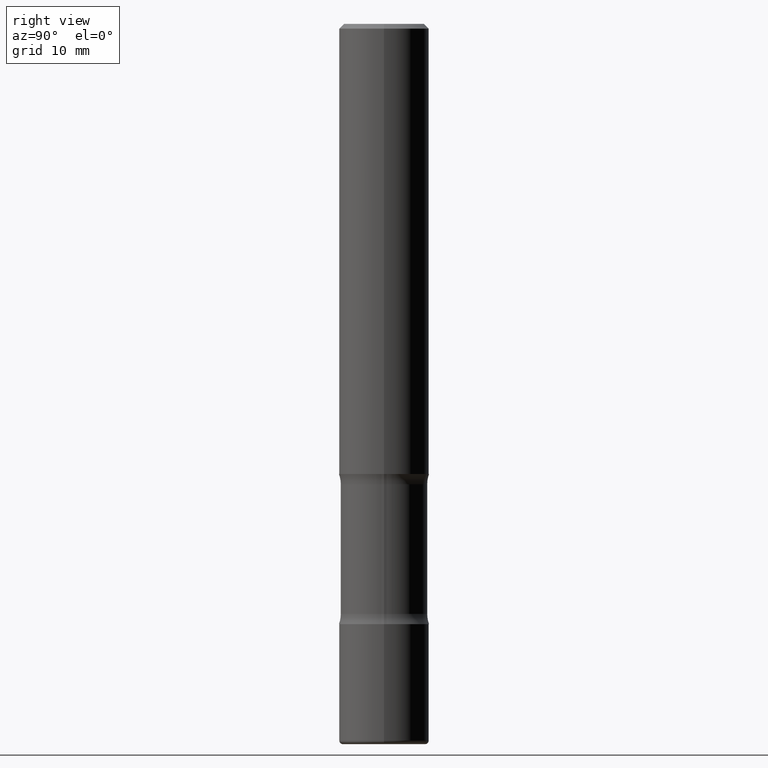
[diagram: clean part render]
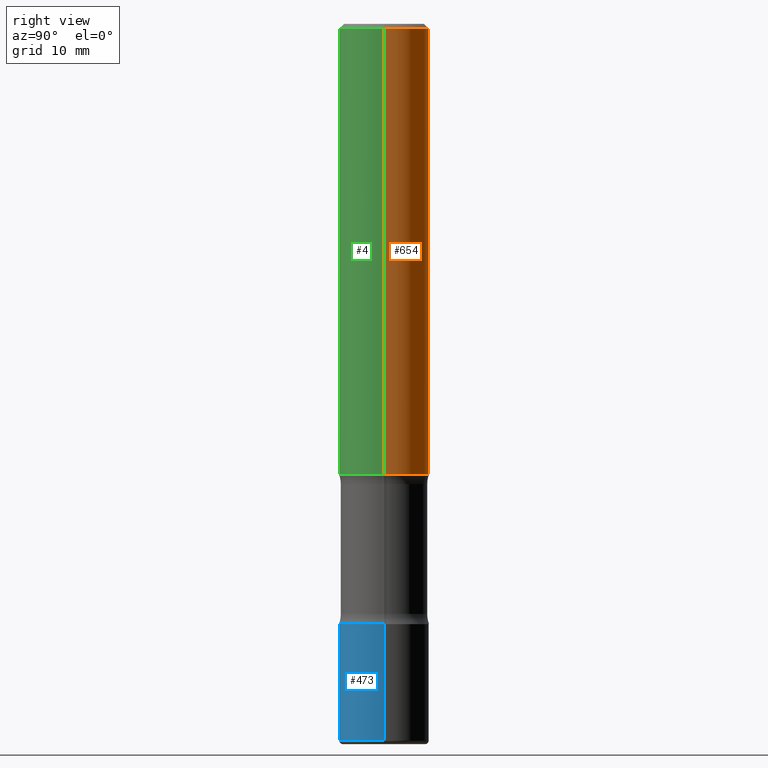
[diagram: same view with three faces highlighted in distinct colors, each labeled with its STEP entity id]
A machine part, right view with three faces highlighted in distinct colors.
Their STEP definitions:

[orange] entity #654 — the highlighted cylindrical surface (partial cylindrical patch) has radius 4.7625 mm, axis along (-0, 0, 1).
#6 = VERTEX_POINT ( 'NONE', #77 ) ;
#10 = AXIS2_PLACEMENT_3D ( 'NONE', #354, #736, #227 ) ;
#33 = ORIENTED_EDGE ( 'NONE', *, *, #168, .F. ) ;
#49 = LINE ( 'NONE', #162, #436 ) ;
#65 = CIRCLE ( 'NONE', #580, 0.1874999999999997780 ) ;
#77 = CARTESIAN_POINT ( 'NONE',  ( 0.1874999999999997780, -1.356173001359023691E-15, -0.02000000000000003858 ) ) ;
#117 = ORIENTED_EDGE ( 'NONE', *, *, #686, .T. ) ;
#162 = CARTESIAN_POINT ( 'NONE',  ( -0.1874999999999999167, 1.332267629550187257E-15, -9.223003294227943787E-30 ) ) ;
#167 = AXIS2_PLACEMENT_3D ( 'NONE', #703, #724, #582 ) ;
#168 = EDGE_CURVE ( 'NONE', #6, #472, #65, .T. ) ;
#227 = DIRECTION ( 'NONE',  ( 1.000000000000000000, -6.982962677686265922E-15, 4.876176775795935793E-29 ) ) ;
#304 = DIRECTION ( 'NONE',  ( -2.445468806185136877E-29, 3.491481338843145188E-15, 1.000000000000000000 ) ) ;
#316 = CIRCLE ( 'NONE', #167, 0.1875000000000000278 ) ;
#354 = CARTESIAN_POINT ( 'NONE',  ( 0.000000000000000000, 0.000000000000000000, 0.000000000000000000 ) ) ;
#366 = DIRECTION ( 'NONE',  ( -2.445468806185136877E-29, 3.491481338843145188E-15, 1.000000000000000000 ) ) ;
#414 = EDGE_LOOP ( 'NONE', ( #706, #117, #33, #500 ) ) ;
#424 = CYLINDRICAL_SURFACE ( 'NONE', #10, 0.1874999999999999167 ) ;
#435 = VERTEX_POINT ( 'NONE', #757 ) ;
#436 = VECTOR ( 'NONE', #304, 39.37007874015748143 ) ;
#437 = DIRECTION ( 'NONE',  ( 1.000000000000000000, -6.982962677686265133E-15, 0.000000000000000000 ) ) ;
#472 = VERTEX_POINT ( 'NONE', #503 ) ;
#481 = DIRECTION ( 'NONE',  ( -2.445468806185136597E-29, 3.491481338843145583E-15, 1.000000000000000000 ) ) ;
#500 = ORIENTED_EDGE ( 'NONE', *, *, #664, .F. ) ;
#503 = CARTESIAN_POINT ( 'NONE',  ( -0.1874999999999997780, 1.239475875289310330E-15, -0.02000000000000003858 ) ) ;
#539 = CARTESIAN_POINT ( 'NONE',  ( 0.1874999999999999167, -1.309305502066174219E-15, 9.142831454617375408E-30 ) ) ;
#580 = AXIS2_PLACEMENT_3D ( 'NONE', #747, #481, #437 ) ;
#582 = DIRECTION ( 'NONE',  ( 1.000000000000000000, -6.982962677686266711E-15, 0.000000000000000000 ) ) ;
#615 = VERTEX_POINT ( 'NONE', #646 ) ;
#636 = VECTOR ( 'NONE', #366, 39.37007874015748143 ) ;
#646 = CARTESIAN_POINT ( 'NONE',  ( -0.1874999999999999722, -1.975910939003691182E-15, -1.875000000000000000 ) ) ;
#654 = ADVANCED_FACE ( 'NONE', ( #786 ), #424, .T. ) ;
#663 = LINE ( 'NONE', #539, #636 ) ;
#664 = EDGE_CURVE ( 'NONE', #435, #6, #663, .T. ) ;
#686 = EDGE_CURVE ( 'NONE', #615, #472, #49, .T. ) ;
#703 = CARTESIAN_POINT ( 'NONE',  ( 4.585254011597131119E-29, -6.546527510330898707E-15, -1.875000000000000000 ) ) ;
#706 = ORIENTED_EDGE ( 'NONE', *, *, #797, .T. ) ;
#724 = DIRECTION ( 'NONE',  ( -2.445468806185136597E-29, 3.491481338843145583E-15, 1.000000000000000000 ) ) ;
#736 = DIRECTION ( 'NONE',  ( -2.445468806185136597E-29, 3.491481338843145583E-15, 1.000000000000000000 ) ) ;
#747 = CARTESIAN_POINT ( 'NONE',  ( 4.890937612370282792E-31, -6.982962677686303935E-17, -0.02000000000000003858 ) ) ;
#757 = CARTESIAN_POINT ( 'NONE',  ( 0.1875000000000000278, -7.855833012397073715E-15, -1.875000000000000000 ) ) ;
#786 = FACE_OUTER_BOUND ( 'NONE', #414, .T. ) ;
#797 = EDGE_CURVE ( 'NONE', #435, #615, #316, .T. ) ;

[blue] entity #473 — the highlighted cylindrical surface (partial cylindrical patch) has radius 4.7625 mm, axis along (-0, 0, 1).
#19 = CARTESIAN_POINT ( 'NONE',  ( 0.1875000000000000833, -1.173137729851296152E-14, -2.984999999999999876 ) ) ;
#22 = AXIS2_PLACEMENT_3D ( 'NONE', #771, #460, #710 ) ;
#29 = DIRECTION ( 'NONE',  ( -2.445468806185136597E-29, 3.491481338843145583E-15, 1.000000000000000000 ) ) ;
#51 = ORIENTED_EDGE ( 'NONE', *, *, #605, .T. ) ;
#79 = CARTESIAN_POINT ( 'NONE',  ( 6.113672015462840371E-29, -8.728703347107863365E-15, -2.499999999999999556 ) ) ;
#138 = AXIS2_PLACEMENT_3D ( 'NONE', #721, #576, #591 ) ;
#169 = LINE ( 'NONE', #488, #571 ) ;
#267 = DIRECTION ( 'NONE',  ( 1.000000000000000000, -6.982962677686265922E-15, 0.000000000000000000 ) ) ;
#275 = EDGE_CURVE ( 'NONE', #789, #390, #310, .T. ) ;
#310 = LINE ( 'NONE', #782, #391 ) ;
#336 = CARTESIAN_POINT ( 'NONE',  ( -0.1875000000000000833, -9.089804166896600242E-15, -2.984999999999999876 ) ) ;
#376 = CYLINDRICAL_SURFACE ( 'NONE', #138, 0.1875000000000000555 ) ;
#386 = ORIENTED_EDGE ( 'NONE', *, *, #743, .T. ) ;
#390 = VERTEX_POINT ( 'NONE', #693 ) ;
#391 = VECTOR ( 'NONE', #554, 39.37007874015748143 ) ;
#451 = ORIENTED_EDGE ( 'NONE', *, *, #499, .F. ) ;
#460 = DIRECTION ( 'NONE',  ( -2.445468806185136597E-29, 3.491481338843145583E-15, 1.000000000000000000 ) ) ;
#473 = ADVANCED_FACE ( 'NONE', ( #633 ), #376, .T. ) ;
#474 = CARTESIAN_POINT ( 'NONE',  ( 0.1875000000000000555, -1.003800884917403837E-14, -2.499999999999999556 ) ) ;
#488 = CARTESIAN_POINT ( 'NONE',  ( 0.1875000000000000555, -1.309305502066175205E-15, 9.142831454617382414E-30 ) ) ;
#499 = EDGE_CURVE ( 'NONE', #390, #670, #546, .T. ) ;
#517 = CIRCLE ( 'NONE', #22, 0.1875000000000000278 ) ;
#532 = AXIS2_PLACEMENT_3D ( 'NONE', #79, #29, #267 ) ;
#546 = CIRCLE ( 'NONE', #532, 0.1875000000000000555 ) ;
#554 = DIRECTION ( 'NONE',  ( -2.445468806185136877E-29, 3.491481338843145188E-15, 1.000000000000000000 ) ) ;
#569 = EDGE_LOOP ( 'NONE', ( #800, #51, #386, #451 ) ) ;
#571 = VECTOR ( 'NONE', #740, 39.37007874015748143 ) ;
#574 = VERTEX_POINT ( 'NONE', #19 ) ;
#576 = DIRECTION ( 'NONE',  ( -2.445468806185136597E-29, 3.491481338843145583E-15, 1.000000000000000000 ) ) ;
#591 = DIRECTION ( 'NONE',  ( 1.000000000000000000, -6.982962677686265922E-15, 4.876176775795935793E-29 ) ) ;
#605 = EDGE_CURVE ( 'NONE', #789, #574, #517, .T. ) ;
#633 = FACE_OUTER_BOUND ( 'NONE', #569, .T. ) ;
#670 = VERTEX_POINT ( 'NONE', #474 ) ;
#693 = CARTESIAN_POINT ( 'NONE',  ( -0.1875000000000000555, -8.243119942227137091E-15, -2.499999999999999556 ) ) ;
#710 = DIRECTION ( 'NONE',  ( 1.000000000000000000, -6.982962677686261189E-15, 0.000000000000000000 ) ) ;
#721 = CARTESIAN_POINT ( 'NONE',  ( 0.000000000000000000, 0.000000000000000000, 0.000000000000000000 ) ) ;
#740 = DIRECTION ( 'NONE',  ( -2.445468806185136877E-29, 3.491481338843145188E-15, 1.000000000000000000 ) ) ;
#743 = EDGE_CURVE ( 'NONE', #574, #670, #169, .T. ) ;
#771 = CARTESIAN_POINT ( 'NONE',  ( 7.299724386462632472E-29, -1.042207179644678967E-14, -2.984999999999999876 ) ) ;
#782 = CARTESIAN_POINT ( 'NONE',  ( -0.1875000000000000555, 1.332267629550188243E-15, -9.223003294227950793E-30 ) ) ;
#789 = VERTEX_POINT ( 'NONE', #336 ) ;
#800 = ORIENTED_EDGE ( 'NONE', *, *, #275, .F. ) ;

[green] entity #4 — the highlighted cylindrical surface (partial cylindrical patch) has radius 4.7625 mm, axis along (-0, 0, 1).
#4 = ADVANCED_FACE ( 'NONE', ( #20 ), #152, .T. ) ;
#6 = VERTEX_POINT ( 'NONE', #77 ) ;
#20 = FACE_OUTER_BOUND ( 'NONE', #124, .T. ) ;
#49 = LINE ( 'NONE', #162, #436 ) ;
#69 = AXIS2_PLACEMENT_3D ( 'NONE', #105, #419, #796 ) ;
#77 = CARTESIAN_POINT ( 'NONE',  ( 0.1874999999999997780, -1.356173001359023691E-15, -0.02000000000000003858 ) ) ;
#105 = CARTESIAN_POINT ( 'NONE',  ( 4.890937612370282792E-31, -6.982962677686303935E-17, -0.02000000000000003858 ) ) ;
#124 = EDGE_LOOP ( 'NONE', ( #645, #184, #342, #444 ) ) ;
#152 = CYLINDRICAL_SURFACE ( 'NONE', #538, 0.1874999999999999167 ) ;
#162 = CARTESIAN_POINT ( 'NONE',  ( -0.1874999999999999167, 1.332267629550187257E-15, -9.223003294227943787E-30 ) ) ;
#184 = ORIENTED_EDGE ( 'NONE', *, *, #510, .T. ) ;
#238 = AXIS2_PLACEMENT_3D ( 'NONE', #412, #533, #512 ) ;
#304 = DIRECTION ( 'NONE',  ( -2.445468806185136877E-29, 3.491481338843145188E-15, 1.000000000000000000 ) ) ;
#342 = ORIENTED_EDGE ( 'NONE', *, *, #664, .T. ) ;
#366 = DIRECTION ( 'NONE',  ( -2.445468806185136877E-29, 3.491481338843145188E-15, 1.000000000000000000 ) ) ;
#412 = CARTESIAN_POINT ( 'NONE',  ( 4.585254011597131119E-29, -6.546527510330898707E-15, -1.875000000000000000 ) ) ;
#419 = DIRECTION ( 'NONE',  ( -2.445468806185136597E-29, 3.491481338843145583E-15, 1.000000000000000000 ) ) ;
#435 = VERTEX_POINT ( 'NONE', #757 ) ;
#436 = VECTOR ( 'NONE', #304, 39.37007874015748143 ) ;
#444 = ORIENTED_EDGE ( 'NONE', *, *, #704, .F. ) ;
#457 = DIRECTION ( 'NONE',  ( -2.445468806185136597E-29, 3.491481338843145583E-15, 1.000000000000000000 ) ) ;
#472 = VERTEX_POINT ( 'NONE', #503 ) ;
#495 = CIRCLE ( 'NONE', #238, 0.1875000000000000278 ) ;
#503 = CARTESIAN_POINT ( 'NONE',  ( -0.1874999999999997780, 1.239475875289310330E-15, -0.02000000000000003858 ) ) ;
#510 = EDGE_CURVE ( 'NONE', #615, #435, #495, .T. ) ;
#512 = DIRECTION ( 'NONE',  ( 1.000000000000000000, -6.982962677686266711E-15, 0.000000000000000000 ) ) ;
#533 = DIRECTION ( 'NONE',  ( -2.445468806185136597E-29, 3.491481338843145583E-15, 1.000000000000000000 ) ) ;
#538 = AXIS2_PLACEMENT_3D ( 'NONE', #592, #457, #726 ) ;
#539 = CARTESIAN_POINT ( 'NONE',  ( 0.1874999999999999167, -1.309305502066174219E-15, 9.142831454617375408E-30 ) ) ;
#558 = CIRCLE ( 'NONE', #69, 0.1874999999999997780 ) ;
#592 = CARTESIAN_POINT ( 'NONE',  ( 0.000000000000000000, 0.000000000000000000, 0.000000000000000000 ) ) ;
#615 = VERTEX_POINT ( 'NONE', #646 ) ;
#636 = VECTOR ( 'NONE', #366, 39.37007874015748143 ) ;
#645 = ORIENTED_EDGE ( 'NONE', *, *, #686, .F. ) ;
#646 = CARTESIAN_POINT ( 'NONE',  ( -0.1874999999999999722, -1.975910939003691182E-15, -1.875000000000000000 ) ) ;
#663 = LINE ( 'NONE', #539, #636 ) ;
#664 = EDGE_CURVE ( 'NONE', #435, #6, #663, .T. ) ;
#686 = EDGE_CURVE ( 'NONE', #615, #472, #49, .T. ) ;
#704 = EDGE_CURVE ( 'NONE', #472, #6, #558, .T. ) ;
#726 = DIRECTION ( 'NONE',  ( 1.000000000000000000, -6.982962677686265922E-15, 4.876176775795935793E-29 ) ) ;
#757 = CARTESIAN_POINT ( 'NONE',  ( 0.1875000000000000278, -7.855833012397073715E-15, -1.875000000000000000 ) ) ;
#796 = DIRECTION ( 'NONE',  ( 1.000000000000000000, -6.982962677686265133E-15, 0.000000000000000000 ) ) ;